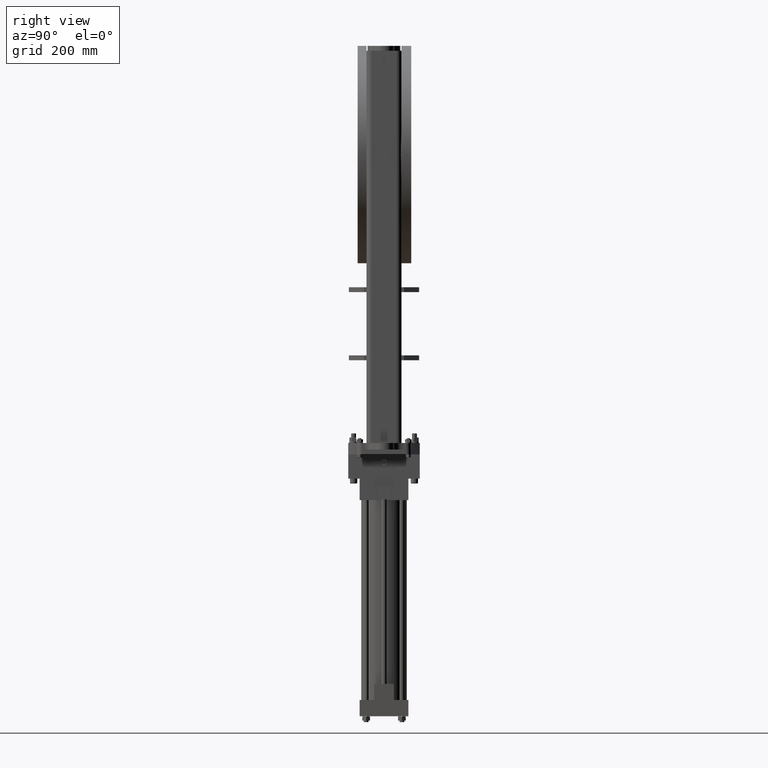
[diagram: clean part render]
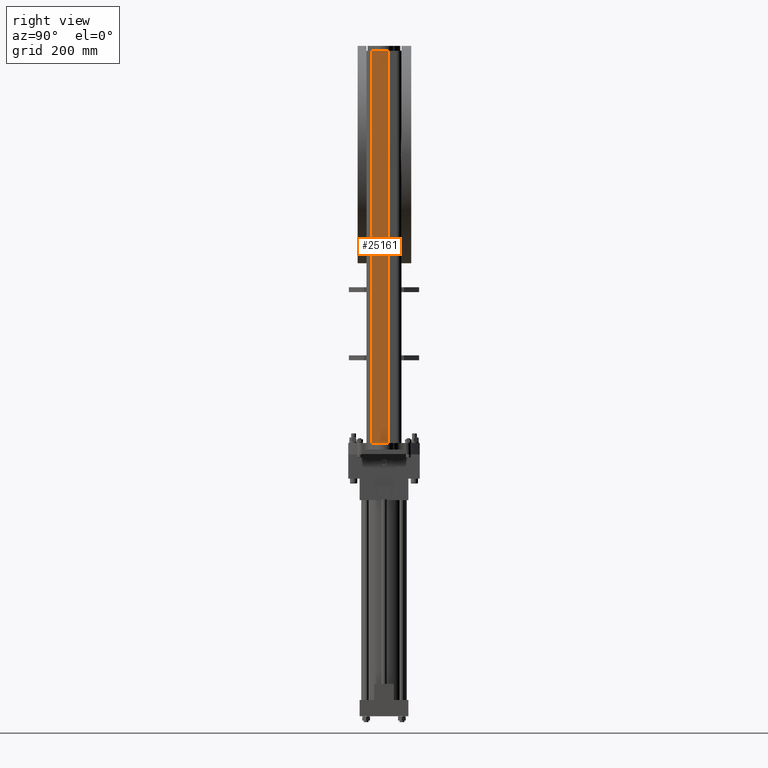
[diagram: same view with one face highlighted and labeled with its STEP entity id]
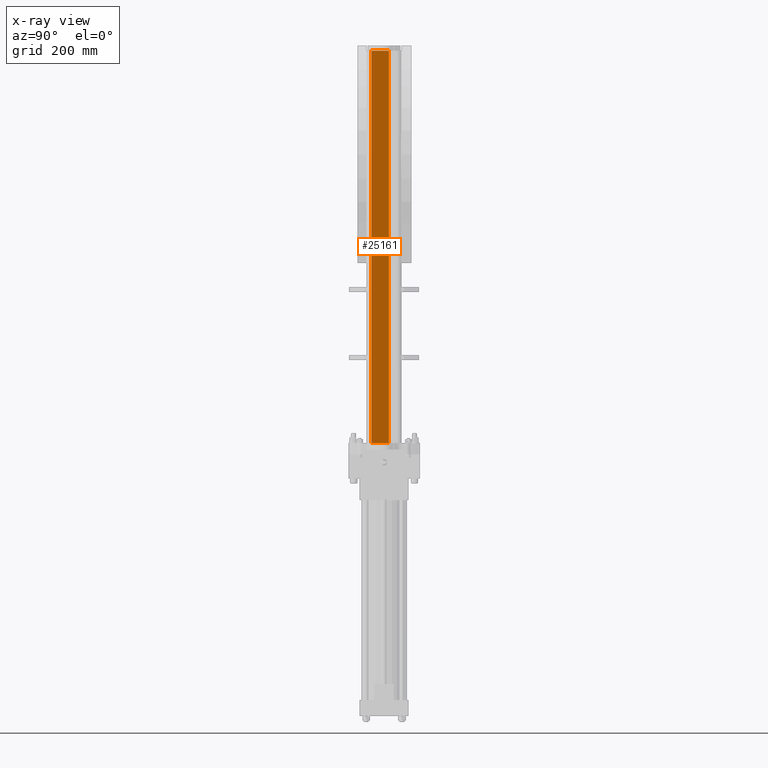
[diagram: x-ray of the same camera — body ghosted, the highlighted face saturated]
A machine part, right view. The second image highlights one B-rep face of the part: STEP entity #25161.
The next image is the same camera in x-ray: the body ghosted, the highlighted face saturated — about 0% of this face is hidden behind the body in this view.
In plain terms, the highlighted planar face has unit normal (-1, 0, 0).
Its self-contained STEP definition (entity closure, byte-faithful):
#657 = ORIENTED_EDGE ( 'NONE', *, *, #21350, .F. ) ;
#1393 = EDGE_CURVE ( 'NONE', #7315, #18465, #1616, .T. ) ;
#1439 = CARTESIAN_POINT ( 'NONE',  ( 8.187500000000000000, -1.410100000000000800, 8.000000000000001800 ) ) ;
#1545 = VERTEX_POINT ( 'NONE', #16799 ) ;
#1616 = LINE ( 'NONE', #11871, #6344 ) ;
#1789 = CARTESIAN_POINT ( 'NONE',  ( 8.187499999999998200, -2.745100000000000800, -22.21999999999999500 ) ) ;
#2004 = CARTESIAN_POINT ( 'NONE',  ( 8.187500000000000000, -1.410100000000000800, 8.000000000000001800 ) ) ;
#3459 = DIRECTION ( 'NONE',  ( 0.0000000000000000000, 0.0000000000000000000, -1.000000000000000000 ) ) ;
#4040 = VECTOR ( 'NONE', #14109, 39.37007874015748100 ) ;
#4260 = DIRECTION ( 'NONE',  ( 1.456985596620939600E-015, 1.000000000000000000, -0.0000000000000000000 ) ) ;
#4560 = AXIS2_PLACEMENT_3D ( 'NONE', #24234, #13978, #24060 ) ;
#6344 = VECTOR ( 'NONE', #25926, 39.37007874015748100 ) ;
#7315 = VERTEX_POINT ( 'NONE', #1789 ) ;
#8127 = CARTESIAN_POINT ( 'NONE',  ( 8.187500000000000000, -1.410100000000000800, 8.000000000000001800 ) ) ;
#9326 = LINE ( 'NONE', #8127, #13453 ) ;
#11544 = ORIENTED_EDGE ( 'NONE', *, *, #1393, .T. ) ;
#11871 = CARTESIAN_POINT ( 'NONE',  ( 8.187500000000000000, -1.410100000000000800, -22.21999999999999500 ) ) ;
#12097 = PLANE ( 'NONE',  #4560 ) ;
#12440 = VERTEX_POINT ( 'NONE', #1439 ) ;
#12982 = FACE_OUTER_BOUND ( 'NONE', #13967, .T. ) ;
#13453 = VECTOR ( 'NONE', #4260, 39.37007874015748100 ) ;
#13967 = EDGE_LOOP ( 'NONE', ( #11544, #14052, #657, #21491 ) ) ;
#13978 = DIRECTION ( 'NONE',  ( -1.000000000000000000, 1.456985596620939600E-015, 0.0000000000000000000 ) ) ;
#14052 = ORIENTED_EDGE ( 'NONE', *, *, #20691, .F. ) ;
#14109 = DIRECTION ( 'NONE',  ( 0.0000000000000000000, 0.0000000000000000000, -1.000000000000000000 ) ) ;
#14935 = EDGE_CURVE ( 'NONE', #1545, #7315, #19479, .T. ) ;
#16799 = CARTESIAN_POINT ( 'NONE',  ( 8.187499999999998200, -2.745100000000000800, 8.000000000000001800 ) ) ;
#18465 = VERTEX_POINT ( 'NONE', #24207 ) ;
#19479 = LINE ( 'NONE', #23616, #25426 ) ;
#20095 = LINE ( 'NONE', #2004, #4040 ) ;
#20691 = EDGE_CURVE ( 'NONE', #12440, #18465, #20095, .T. ) ;
#21350 = EDGE_CURVE ( 'NONE', #1545, #12440, #9326, .T. ) ;
#21491 = ORIENTED_EDGE ( 'NONE', *, *, #14935, .T. ) ;
#23616 = CARTESIAN_POINT ( 'NONE',  ( 8.187499999999998200, -2.745100000000000800, 8.000000000000001800 ) ) ;
#24060 = DIRECTION ( 'NONE',  ( -0.0000000000000000000, 0.0000000000000000000, -1.000000000000000000 ) ) ;
#24207 = CARTESIAN_POINT ( 'NONE',  ( 8.187500000000000000, -1.410100000000000800, -22.21999999999999500 ) ) ;
#24234 = CARTESIAN_POINT ( 'NONE',  ( 8.187500000000000000, -1.410100000000000800, 8.000000000000001800 ) ) ;
#25161 = ADVANCED_FACE ( 'NONE', ( #12982 ), #12097, .F. ) ;
#25426 = VECTOR ( 'NONE', #3459, 39.37007874015748100 ) ;
#25926 = DIRECTION ( 'NONE',  ( 1.456985596620939600E-015, 1.000000000000000000, -0.0000000000000000000 ) ) ;